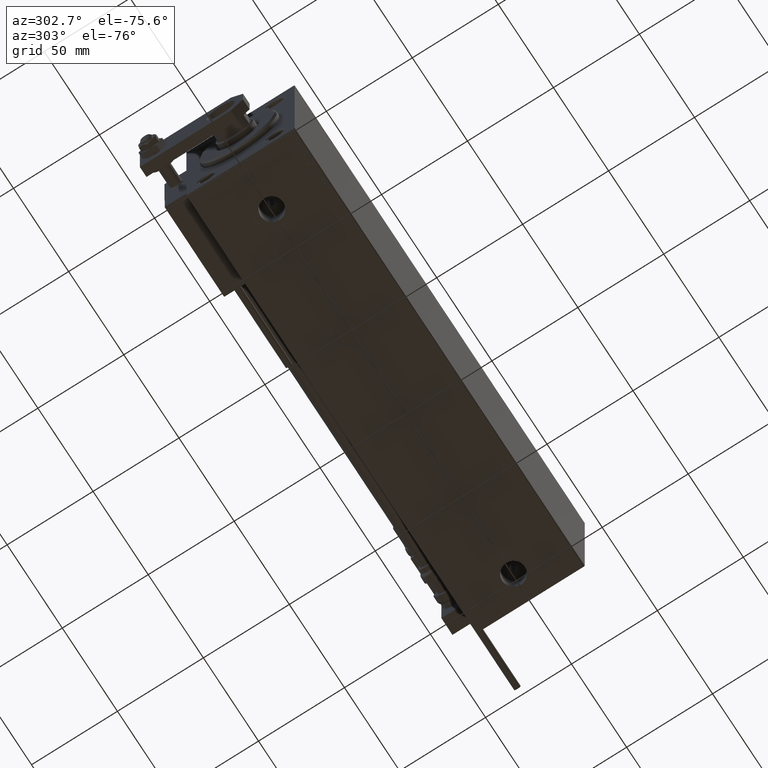
[diagram: clean part render]
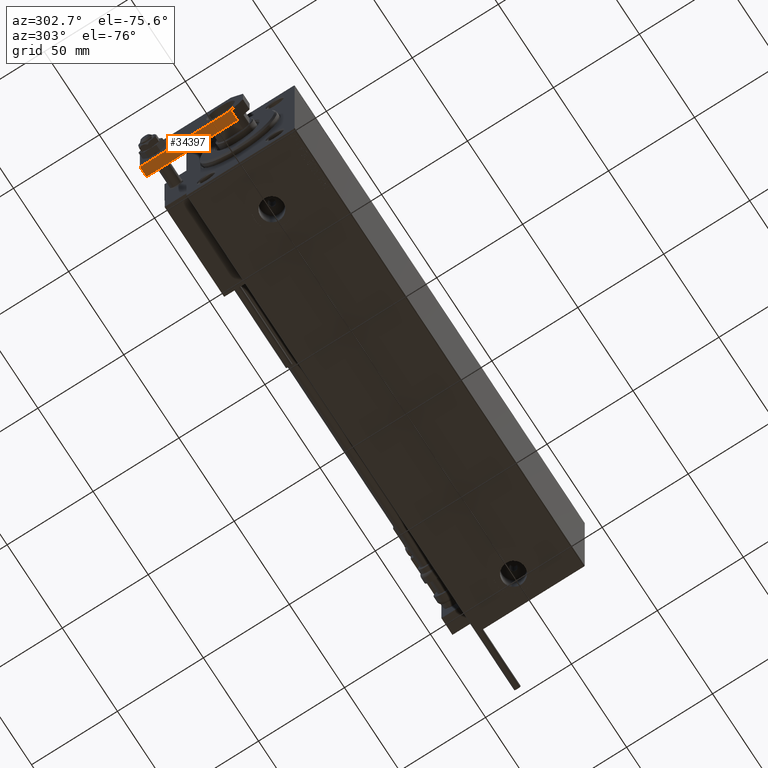
[diagram: same view with one face highlighted and labeled with its STEP entity id]
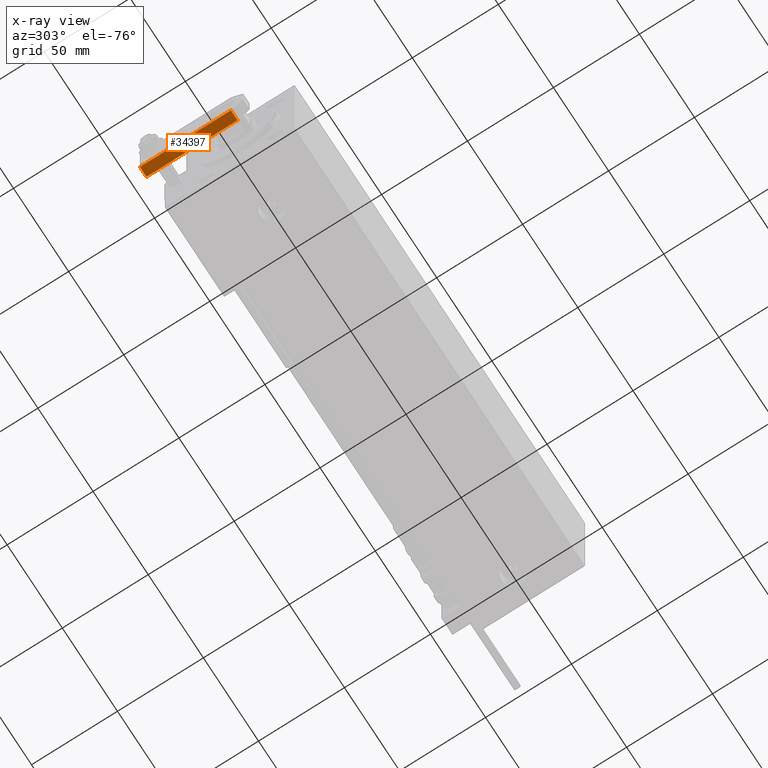
[diagram: x-ray of the same camera — body ghosted, the highlighted face saturated]
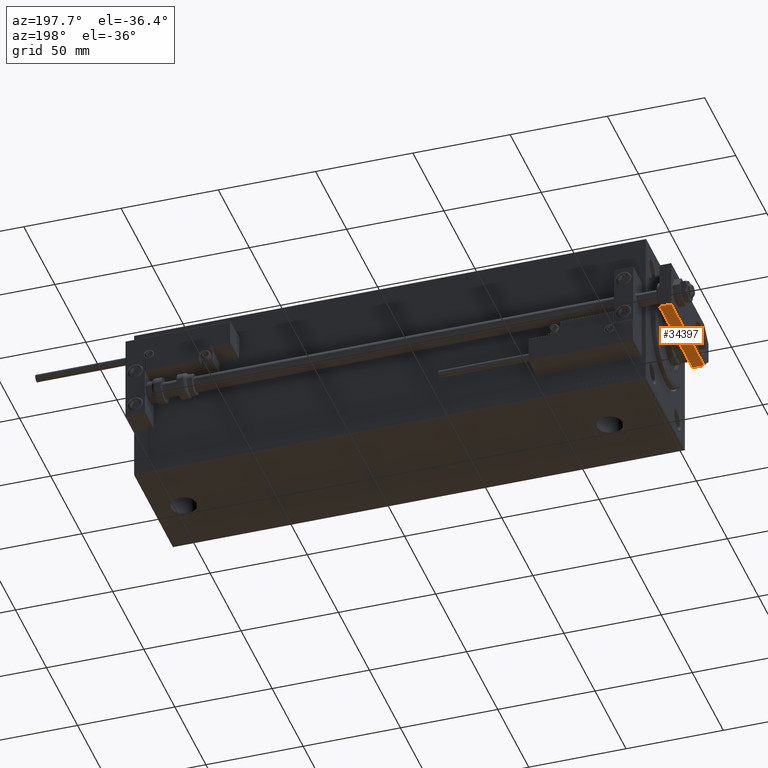
[diagram: same view with one face highlighted and labeled with its STEP entity id]
A machine part, auxiliary view. The second image highlights one B-rep face of the part: STEP entity #34397.
The next image is the same camera in x-ray: the body ghosted, the highlighted face saturated — about 0% of this face is hidden behind the body in this view.
A second angle (auxiliary view) of the same face is appended — the face is thin or edge-on in the first view.
In plain terms, the highlighted planar face has unit normal (0, -0, 1).
Its self-contained STEP definition (entity closure, byte-faithful):
#119 = AXIS2_PLACEMENT_3D ( 'NONE', #52339, #24140, #48859 ) ;
#2615 = EDGE_LOOP ( 'NONE', ( #50947, #36291, #50420, #12473 ) ) ;
#4357 = VERTEX_POINT ( 'NONE', #35886 ) ;
#4788 = CARTESIAN_POINT ( 'NONE',  ( -12.50000000000000355, 7.000000000000013323, 0.000000000000000000 ) ) ;
#5205 = CARTESIAN_POINT ( 'NONE',  ( -12.49999999999999822, 60.00000000000000000, 6.000000000000000000 ) ) ;
#6804 = VERTEX_POINT ( 'NONE', #4788 ) ;
#6945 = EDGE_CURVE ( 'NONE', #4357, #8895, #18313, .T. ) ;
#8895 = VERTEX_POINT ( 'NONE', #17410 ) ;
#11145 = EDGE_CURVE ( 'NONE', #8895, #6804, #15980, .T. ) ;
#12473 = ORIENTED_EDGE ( 'NONE', *, *, #6945, .T. ) ;
#14578 = DIRECTION ( 'NONE',  ( -0.000000000000000000, -0.000000000000000000, -1.000000000000000000 ) ) ;
#15555 = CARTESIAN_POINT ( 'NONE',  ( -12.50000000000000355, 7.000000000000013323, 6.000000000000000000 ) ) ;
#15980 = LINE ( 'NONE', #31926, #18899 ) ;
#16141 = VECTOR ( 'NONE', #14578, 1000.000000000000000 ) ;
#17410 = CARTESIAN_POINT ( 'NONE',  ( -12.49999999999999822, 60.00000000000000000, 0.000000000000000000 ) ) ;
#17944 = LINE ( 'NONE', #5205, #19831 ) ;
#18313 = LINE ( 'NONE', #42780, #16141 ) ;
#18899 = VECTOR ( 'NONE', #48425, 1000.000000000000000 ) ;
#19831 = VECTOR ( 'NONE', #37602, 1000.000000000000000 ) ;
#20420 = PLANE ( 'NONE',  #119 ) ;
#24140 = DIRECTION ( 'NONE',  ( 1.000000000000000000, -8.673617379884034239E-17, 0.000000000000000000 ) ) ;
#31926 = CARTESIAN_POINT ( 'NONE',  ( -12.49999999999999822, 60.00000000000000000, 0.000000000000000000 ) ) ;
#32023 = LINE ( 'NONE', #15555, #48779 ) ;
#32619 = FACE_OUTER_BOUND ( 'NONE', #2615, .T. ) ;
#32803 = DIRECTION ( 'NONE',  ( 0.000000000000000000, 0.000000000000000000, 1.000000000000000000 ) ) ;
#33896 = CARTESIAN_POINT ( 'NONE',  ( -12.50000000000000355, 7.000000000000013323, 6.000000000000000000 ) ) ;
#34397 = ADVANCED_FACE ( 'NONE', ( #32619 ), #20420, .F. ) ;
#35886 = CARTESIAN_POINT ( 'NONE',  ( -12.49999999999999822, 60.00000000000000000, 6.000000000000000000 ) ) ;
#36291 = ORIENTED_EDGE ( 'NONE', *, *, #45973, .T. ) ;
#37602 = DIRECTION ( 'NONE',  ( -8.673617379884035472E-17, -1.000000000000000000, 0.000000000000000000 ) ) ;
#42780 = CARTESIAN_POINT ( 'NONE',  ( -12.49999999999999822, 60.00000000000000000, 6.000000000000000000 ) ) ;
#43045 = EDGE_CURVE ( 'NONE', #4357, #43755, #17944, .T. ) ;
#43755 = VERTEX_POINT ( 'NONE', #33896 ) ;
#45973 = EDGE_CURVE ( 'NONE', #6804, #43755, #32023, .T. ) ;
#48425 = DIRECTION ( 'NONE',  ( -8.673617379884035472E-17, -1.000000000000000000, 0.000000000000000000 ) ) ;
#48779 = VECTOR ( 'NONE', #32803, 1000.000000000000000 ) ;
#48859 = DIRECTION ( 'NONE',  ( 8.673617379884034239E-17, 1.000000000000000000, 0.000000000000000000 ) ) ;
#50420 = ORIENTED_EDGE ( 'NONE', *, *, #43045, .F. ) ;
#50947 = ORIENTED_EDGE ( 'NONE', *, *, #11145, .T. ) ;
#52339 = CARTESIAN_POINT ( 'NONE',  ( -12.49999999999999822, 60.00000000000000000, 6.000000000000000000 ) ) ;